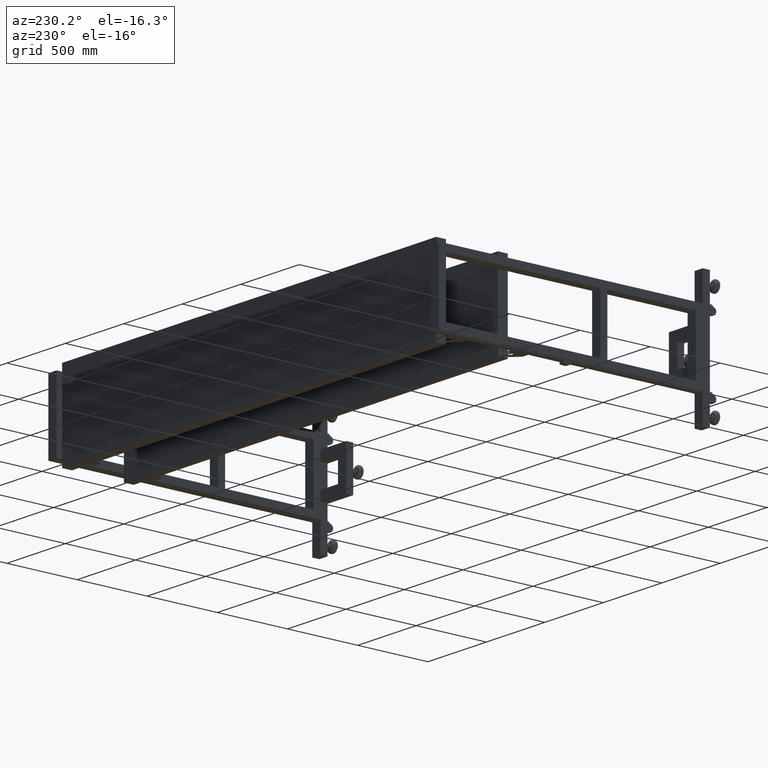
[diagram: clean part render]
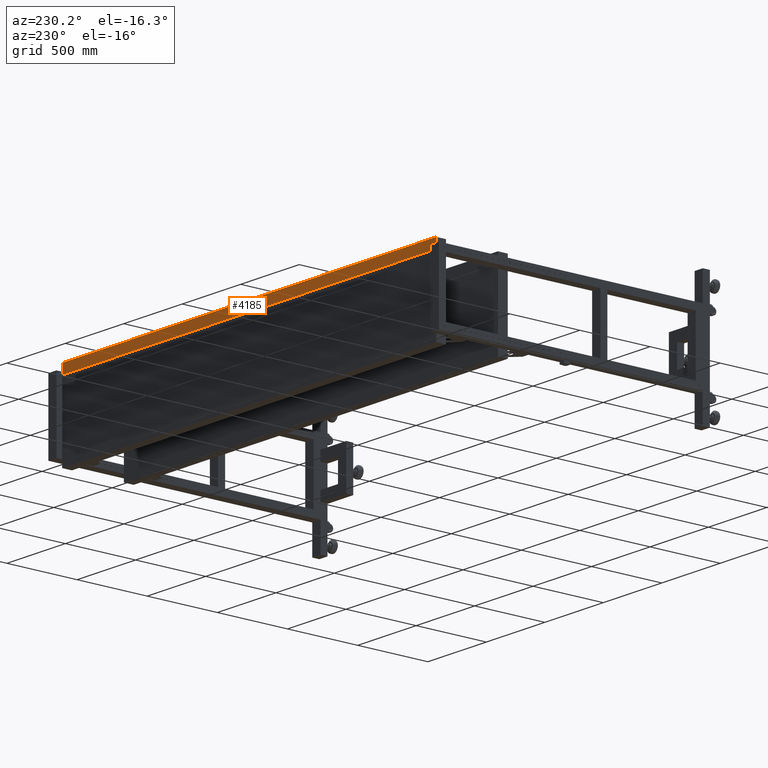
[diagram: same view with one face highlighted and labeled with its STEP entity id]
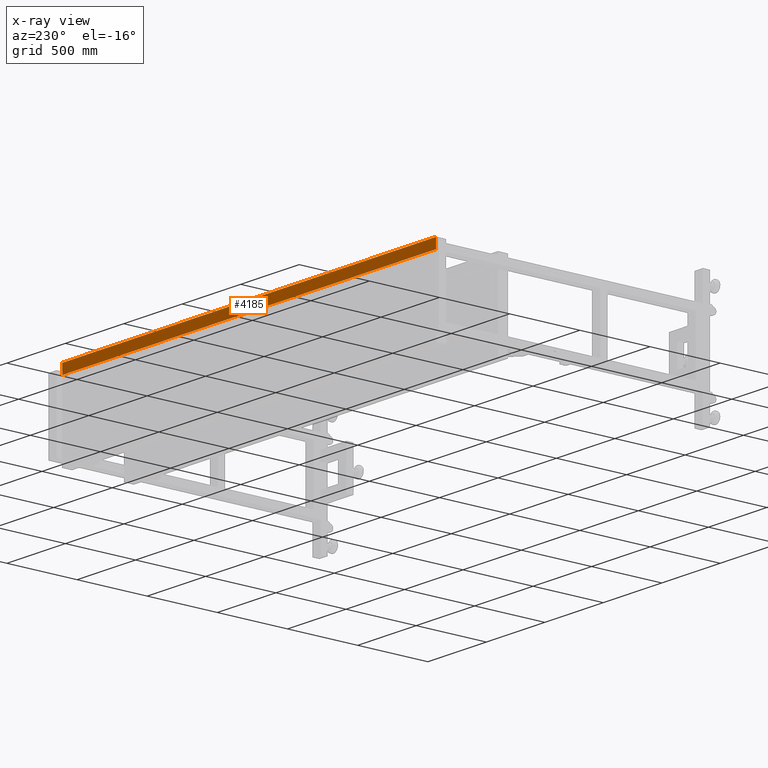
[diagram: x-ray of the same camera — body ghosted, the highlighted face saturated]
A machine part, auxiliary view. The second image highlights one B-rep face of the part: STEP entity #4185.
The next image is the same camera in x-ray: the body ghosted, the highlighted face saturated — about 0% of this face is hidden behind the body in this view.
In plain terms, the highlighted planar face has unit normal (0, -1, -0).
Its self-contained STEP definition (entity closure, byte-faithful):
#163 = DIRECTION ( 'NONE',  ( -1.000000000000000000, -4.543257172554223644E-16, 0.000000000000000000 ) ) ;
#775 = EDGE_LOOP ( 'NONE', ( #11401, #74144, #13062, #50877 ) ) ;
#1731 = VERTEX_POINT ( 'NONE', #21971 ) ;
#4185 = ADVANCED_FACE ( 'NONE', ( #48657 ), #4483, .F. ) ;
#4483 = PLANE ( 'NONE',  #13575 ) ;
#6455 = LINE ( 'NONE', #50249, #9889 ) ;
#9889 = VECTOR ( 'NONE', #26079, 1000.000000000000000 ) ;
#11401 = ORIENTED_EDGE ( 'NONE', *, *, #42204, .T. ) ;
#11661 = LINE ( 'NONE', #31228, #16265 ) ;
#13062 = ORIENTED_EDGE ( 'NONE', *, *, #70967, .F. ) ;
#13575 = AXIS2_PLACEMENT_3D ( 'NONE', #73649, #80192, #17559 ) ;
#16265 = VECTOR ( 'NONE', #163, 1000.000000000000000 ) ;
#17559 = DIRECTION ( 'NONE',  ( -1.000000000000000000, -4.543257172554223644E-16, 0.000000000000000000 ) ) ;
#21971 = CARTESIAN_POINT ( 'NONE',  ( -1266.172487437185964, 996.9410804020118348, 300.0000000000011937 ) ) ;
#22497 = CARTESIAN_POINT ( 'NONE',  ( -1266.172487437185964, 996.9410804020120622, 230.0000000000011653 ) ) ;
#25094 = EDGE_CURVE ( 'NONE', #1731, #36253, #6455, .T. ) ;
#25981 = VERTEX_POINT ( 'NONE', #64770 ) ;
#26079 = DIRECTION ( 'NONE',  ( 0.000000000000000000, 4.000000000000000311E-15, -1.000000000000000000 ) ) ;
#31228 = CARTESIAN_POINT ( 'NONE',  ( 1929.827512562814263, 996.9410804020130854, 230.0000000000011653 ) ) ;
#34197 = VECTOR ( 'NONE', #59415, 1000.000000000000000 ) ;
#36253 = VERTEX_POINT ( 'NONE', #22497 ) ;
#37358 = VERTEX_POINT ( 'NONE', #40610 ) ;
#40610 = CARTESIAN_POINT ( 'NONE',  ( 1929.827512562814263, 996.9410804020128580, 300.0000000000011937 ) ) ;
#40842 = VECTOR ( 'NONE', #55053, 1000.000000000000000 ) ;
#42204 = EDGE_CURVE ( 'NONE', #25981, #36253, #11661, .T. ) ;
#46708 = CARTESIAN_POINT ( 'NONE',  ( 1929.827512562814263, 996.9410804020128580, 300.0000000000011937 ) ) ;
#48657 = FACE_OUTER_BOUND ( 'NONE', #775, .T. ) ;
#50249 = CARTESIAN_POINT ( 'NONE',  ( -1266.172487437185964, 996.9410804020120622, 230.0000000000011653 ) ) ;
#50877 = ORIENTED_EDGE ( 'NONE', *, *, #57351, .T. ) ;
#55053 = DIRECTION ( 'NONE',  ( -1.817302869021689462E-30, 4.000000000000000311E-15, -1.000000000000000000 ) ) ;
#55867 = CARTESIAN_POINT ( 'NONE',  ( 1929.827512562814263, 996.9410804020130854, 230.0000000000011653 ) ) ;
#57351 = EDGE_CURVE ( 'NONE', #37358, #25981, #74297, .T. ) ;
#59415 = DIRECTION ( 'NONE',  ( -1.000000000000000000, -4.543257172554223644E-16, 0.000000000000000000 ) ) ;
#64770 = CARTESIAN_POINT ( 'NONE',  ( 1929.827512562814263, 996.9410804020130854, 230.0000000000011653 ) ) ;
#65535 = LINE ( 'NONE', #46708, #34197 ) ;
#70967 = EDGE_CURVE ( 'NONE', #37358, #1731, #65535, .T. ) ;
#73649 = CARTESIAN_POINT ( 'NONE',  ( 1929.827512562814263, 996.9410804020130854, 230.0000000000011653 ) ) ;
#74144 = ORIENTED_EDGE ( 'NONE', *, *, #25094, .F. ) ;
#74297 = LINE ( 'NONE', #55867, #40842 ) ;
#80192 = DIRECTION ( 'NONE',  ( 4.543257172554223644E-16, -1.000000000000000000, -4.000000000000000311E-15 ) ) ;